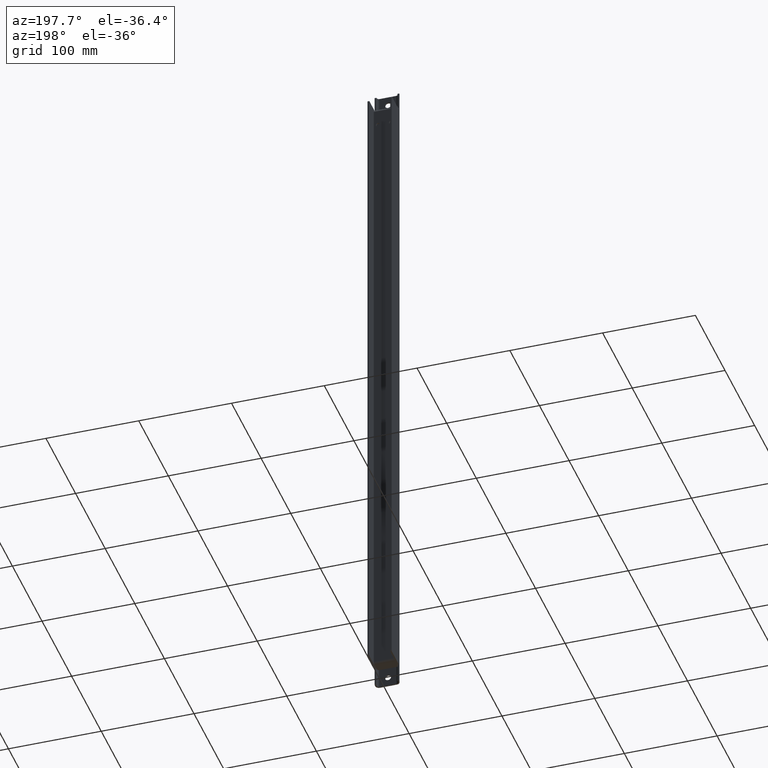
[diagram: clean part render]
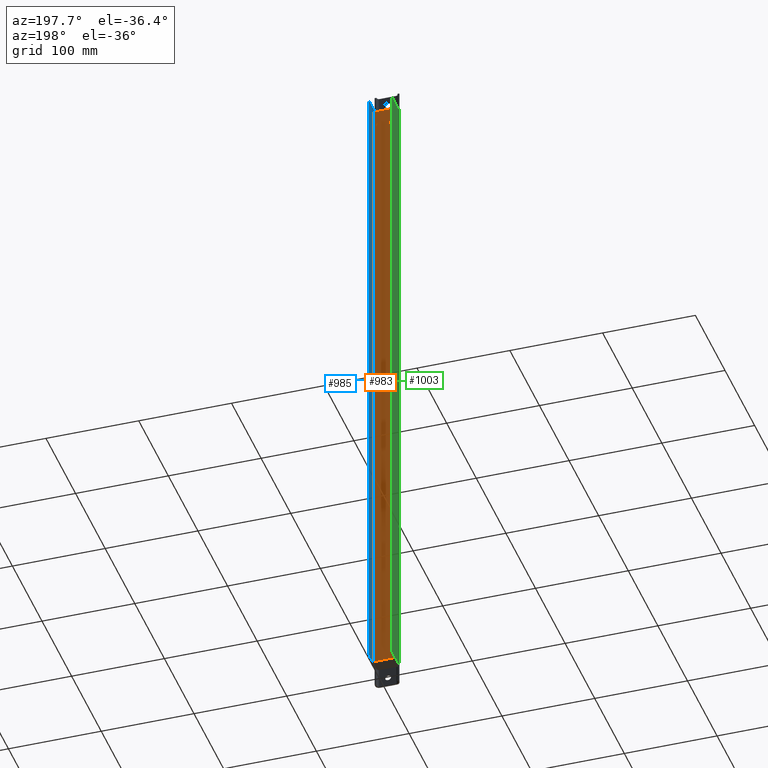
[diagram: same view with three faces highlighted in distinct colors, each labeled with its STEP entity id]
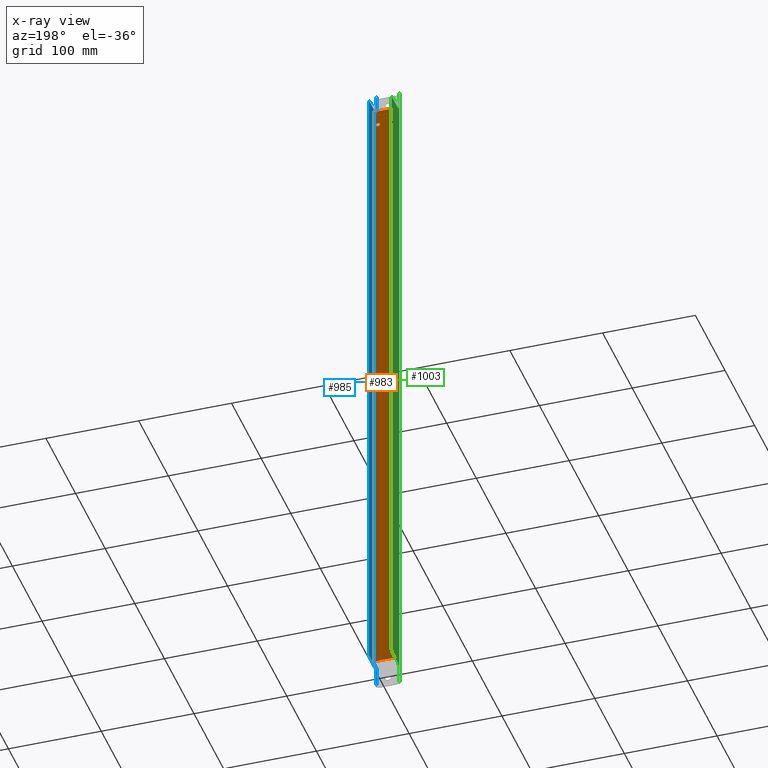
[diagram: x-ray of the same camera — body ghosted, the three highlighted faces saturated]
A machine part, auxiliary view with three faces highlighted in distinct colors.
The next image is the same camera in x-ray (body ghosted, the three faces saturated) — at least one of them is partly hidden behind the body in this view.
Their STEP definitions:

[orange] entity #983 — the highlighted planar face has unit normal (0, 1, -0).
#46=LINE('',#1574,#134);
#47=LINE('',#1577,#135);
#48=LINE('',#1579,#136);
#49=LINE('',#1581,#137);
#134=VECTOR('',#1246,1000.);
#135=VECTOR('',#1247,1000.);
#136=VECTOR('',#1248,1000.);
#137=VECTOR('',#1249,1000.);
#204=PLANE('',#1073);
#275=ORIENTED_EDGE('',*,*,#514,.F.);
#276=ORIENTED_EDGE('',*,*,#516,.F.);
#277=ORIENTED_EDGE('',*,*,#559,.T.);
#278=ORIENTED_EDGE('',*,*,#560,.T.);
#279=ORIENTED_EDGE('',*,*,#561,.T.);
#280=ORIENTED_EDGE('',*,*,#562,.T.);
#514=EDGE_CURVE('',#658,#658,#754,.T.);
#516=EDGE_CURVE('',#660,#660,#756,.T.);
#559=EDGE_CURVE('',#701,#702,#46,.T.);
#560=EDGE_CURVE('',#702,#703,#47,.T.);
#561=EDGE_CURVE('',#703,#704,#48,.T.);
#562=EDGE_CURVE('',#704,#701,#49,.T.);
#658=VERTEX_POINT('',#1477);
#660=VERTEX_POINT('',#1484);
#701=VERTEX_POINT('',#1575);
#702=VERTEX_POINT('',#1576);
#703=VERTEX_POINT('',#1578);
#704=VERTEX_POINT('',#1580);
#754=CIRCLE('',#1045,2.);
#756=CIRCLE('',#1050,2.);
#826=EDGE_LOOP('',(#275));
#827=EDGE_LOOP('',(#276));
#828=EDGE_LOOP('',(#277,#278,#279,#280));
#894=FACE_BOUND('',#826,.T.);
#895=FACE_BOUND('',#827,.T.);
#896=FACE_BOUND('',#828,.T.);
#983=ADVANCED_FACE('',(#894,#895,#896),#204,.T.);
#1045=AXIS2_PLACEMENT_3D('',#1476,#1162,#1163);
#1050=AXIS2_PLACEMENT_3D('',#1483,#1172,#1173);
#1073=AXIS2_PLACEMENT_3D('',#1573,#1244,#1245);
#1162=DIRECTION('',(4.06163832661068E-16,1.,-3.32698173895069E-15));
#1163=DIRECTION('',(9.21833731195405E-17,-3.32698173895069E-15,-1.));
#1172=DIRECTION('',(4.06163832661068E-16,1.,-3.32698173895069E-15));
#1173=DIRECTION('',(9.21833731195405E-17,-3.32698173895069E-15,-1.));
#1244=DIRECTION('',(4.06163832661068E-16,1.,-3.32494788514936E-15));
#1245=DIRECTION('',(-1.,4.06163832661068E-16,6.76398658185478E-32));
#1246=DIRECTION('',(-1.21257418434899E-16,-3.32494788514936E-15,-1.));
#1247=DIRECTION('',(-1.,4.06163832661068E-16,6.76398658185534E-32));
#1248=DIRECTION('',(1.21257418434899E-16,3.32494788514936E-15,1.));
#1249=DIRECTION('',(1.,-4.06163832661068E-16,-6.76398658185534E-32));
#1476=CARTESIAN_POINT('',(7.,-16.4999999999986,333.5));
#1477=CARTESIAN_POINT('',(7.,-16.4999999999986,331.5));
#1483=CARTESIAN_POINT('',(-7.,-16.4999999999986,333.5));
#1484=CARTESIAN_POINT('',(-7.,-16.4999999999986,331.5));
#1573=CARTESIAN_POINT('',(4.66701312594012E-15,-16.4999999999989,-3.78058567638503E-14));
#1574=CARTESIAN_POINT('',(11.5,-16.4999999999977,350.5));
#1575=CARTESIAN_POINT('',(11.5,-16.4999999999986,350.5));
#1576=CARTESIAN_POINT('',(11.5,-16.499999999999,-350.5));
#1577=CARTESIAN_POINT('',(-10.,-16.499999999999,-350.5));
#1578=CARTESIAN_POINT('',(-11.4999999999999,-16.499999999999,-350.5));
#1579=CARTESIAN_POINT('',(-11.4999999999999,-16.4999999999978,350.5));
#1580=CARTESIAN_POINT('',(-11.4999999999999,-16.4999999999978,350.5));
#1581=CARTESIAN_POINT('',(9.99999999999997,-16.4999999999986,350.5));

[blue] entity #985 — the highlighted planar face has unit normal (1, -0, 0).
#40=LINE('',#1554,#128);
#45=LINE('',#1569,#133);
#46=LINE('',#1574,#134);
#57=LINE('',#1613,#145);
#58=LINE('',#1617,#146);
#59=LINE('',#1621,#147);
#60=LINE('',#1625,#148);
#61=LINE('',#1629,#149);
#62=LINE('',#1633,#150);
#63=LINE('',#1637,#151);
#128=VECTOR('',#1228,1000.);
#133=VECTOR('',#1239,1000.);
#134=VECTOR('',#1246,1000.);
#145=VECTOR('',#1281,1000.);
#146=VECTOR('',#1284,1000.);
#147=VECTOR('',#1287,1000.);
#148=VECTOR('',#1290,1000.);
#149=VECTOR('',#1293,1000.);
#150=VECTOR('',#1296,1000.);
#151=VECTOR('',#1299,1000.);
#206=PLANE('',#1083);
#299=ORIENTED_EDGE('',*,*,#556,.F.);
#300=ORIENTED_EDGE('',*,*,#578,.T.);
#301=ORIENTED_EDGE('',*,*,#559,.F.);
#302=ORIENTED_EDGE('',*,*,#579,.T.);
#303=ORIENTED_EDGE('',*,*,#549,.F.);
#304=ORIENTED_EDGE('',*,*,#580,.F.);
#305=ORIENTED_EDGE('',*,*,#581,.T.);
#306=ORIENTED_EDGE('',*,*,#582,.T.);
#307=ORIENTED_EDGE('',*,*,#583,.T.);
#308=ORIENTED_EDGE('',*,*,#584,.T.);
#309=ORIENTED_EDGE('',*,*,#585,.T.);
#310=ORIENTED_EDGE('',*,*,#586,.T.);
#311=ORIENTED_EDGE('',*,*,#587,.T.);
#312=ORIENTED_EDGE('',*,*,#588,.T.);
#313=ORIENTED_EDGE('',*,*,#589,.T.);
#314=ORIENTED_EDGE('',*,*,#590,.T.);
#315=ORIENTED_EDGE('',*,*,#591,.T.);
#316=ORIENTED_EDGE('',*,*,#592,.F.);
#549=EDGE_CURVE('',#693,#694,#40,.T.);
#556=EDGE_CURVE('',#699,#700,#45,.T.);
#559=EDGE_CURVE('',#701,#702,#46,.T.);
#578=EDGE_CURVE('',#699,#702,#781,.T.);
#579=EDGE_CURVE('',#701,#694,#782,.T.);
#580=EDGE_CURVE('',#717,#693,#57,.T.);
#581=EDGE_CURVE('',#717,#718,#783,.T.);
#582=EDGE_CURVE('',#718,#719,#58,.T.);
#583=EDGE_CURVE('',#719,#720,#784,.T.);
#584=EDGE_CURVE('',#720,#721,#59,.T.);
#585=EDGE_CURVE('',#721,#722,#785,.T.);
#586=EDGE_CURVE('',#722,#723,#60,.T.);
#587=EDGE_CURVE('',#723,#724,#786,.T.);
#588=EDGE_CURVE('',#724,#725,#61,.T.);
#589=EDGE_CURVE('',#725,#726,#787,.T.);
#590=EDGE_CURVE('',#726,#727,#62,.T.);
#591=EDGE_CURVE('',#727,#728,#788,.T.);
#592=EDGE_CURVE('',#700,#728,#63,.T.);
#693=VERTEX_POINT('',#1555);
#694=VERTEX_POINT('',#1556);
#699=VERTEX_POINT('',#1568);
#700=VERTEX_POINT('',#1570);
#701=VERTEX_POINT('',#1575);
#702=VERTEX_POINT('',#1576);
#717=VERTEX_POINT('',#1614);
#718=VERTEX_POINT('',#1616);
#719=VERTEX_POINT('',#1618);
#720=VERTEX_POINT('',#1620);
#721=VERTEX_POINT('',#1622);
#722=VERTEX_POINT('',#1624);
#723=VERTEX_POINT('',#1626);
#724=VERTEX_POINT('',#1628);
#725=VERTEX_POINT('',#1630);
#726=VERTEX_POINT('',#1632);
#727=VERTEX_POINT('',#1634);
#728=VERTEX_POINT('',#1636);
#781=CIRCLE('',#1084,3.);
#782=CIRCLE('',#1085,3.);
#783=CIRCLE('',#1086,2.);
#784=CIRCLE('',#1087,2.);
#785=CIRCLE('',#1088,2.);
#786=CIRCLE('',#1089,2.);
#787=CIRCLE('',#1090,2.);
#788=CIRCLE('',#1091,2.);
#830=EDGE_LOOP('',(#299,#300,#301,#302,#303,#304,#305,#306,#307,#308,#309,
#310,#311,#312,#313,#314,#315,#316));
#898=FACE_BOUND('',#830,.T.);
#985=ADVANCED_FACE('',(#898),#206,.F.);
#1083=AXIS2_PLACEMENT_3D('',#1610,#1275,#1276);
#1084=AXIS2_PLACEMENT_3D('',#1611,#1277,#1278);
#1085=AXIS2_PLACEMENT_3D('',#1612,#1279,#1280);
#1086=AXIS2_PLACEMENT_3D('',#1615,#1282,#1283);
#1087=AXIS2_PLACEMENT_3D('',#1619,#1285,#1286);
#1088=AXIS2_PLACEMENT_3D('',#1623,#1288,#1289);
#1089=AXIS2_PLACEMENT_3D('',#1627,#1291,#1292);
#1090=AXIS2_PLACEMENT_3D('',#1631,#1294,#1295);
#1091=AXIS2_PLACEMENT_3D('',#1635,#1297,#1298);
#1228=DIRECTION('',(4.06163832661068E-16,1.,-8.6117241928882E-15));
#1239=DIRECTION('',(-5.71375592277907E-16,-1.,-1.96182842258948E-15));
#1246=DIRECTION('',(-1.21257418434899E-16,-3.32494788514936E-15,-1.));
#1275=DIRECTION('',(1.,-4.06163832661068E-16,8.93686180177302E-17));
#1276=DIRECTION('',(8.93686180177302E-17,1.66533453693773E-16,-1.));
#1277=DIRECTION('',(1.,-4.06163832661068E-16,8.93686180177302E-17));
#1278=DIRECTION('',(4.06163832661068E-16,1.,0.));
#1279=DIRECTION('',(1.,-4.06163832661068E-16,8.93686180177302E-17));
#1280=DIRECTION('',(4.06163832661068E-16,1.,0.));
#1281=DIRECTION('',(8.93686180177302E-17,1.31838984174237E-16,-1.));
#1282=DIRECTION('',(-1.,4.06163832661068E-16,-8.93686180177302E-17));
#1283=DIRECTION('',(8.93686180177302E-17,1.66533453693773E-16,-1.));
#1284=DIRECTION('',(8.93686180177302E-17,4.2624633981144E-17,-1.));
#1285=DIRECTION('',(1.,-4.06163832661068E-16,8.93686180177302E-17));
#1286=DIRECTION('',(8.93686180177302E-17,1.66533453693773E-16,-1.));
#1287=DIRECTION('',(4.06163832661068E-16,1.,1.66533453693773E-16));
#1288=DIRECTION('',(-1.,4.06163832661068E-16,-8.93686180177302E-17));
#1289=DIRECTION('',(8.93686180177302E-17,1.66533453693773E-16,-1.));
#1290=DIRECTION('',(8.93686180177302E-17,1.66533453693773E-16,-1.));
#1291=DIRECTION('',(-1.,4.06163832661068E-16,-8.93686180177302E-17));
#1292=DIRECTION('',(8.93686180177302E-17,1.66533453693773E-16,-1.));
#1293=DIRECTION('',(-4.06163832661068E-16,-1.,-1.66533453693773E-16));
#1294=DIRECTION('',(1.,-4.06163832661068E-16,8.93686180177302E-17));
#1295=DIRECTION('',(8.93686180177302E-17,1.66533453693773E-16,-1.));
#1296=DIRECTION('',(8.93686180177302E-17,1.66533453693773E-16,-1.));
#1297=DIRECTION('',(-1.,4.06163832661068E-16,-8.93686180177302E-17));
#1298=DIRECTION('',(8.93686180177551E-17,6.15323764163733E-14,-1.));
#1299=DIRECTION('',(8.93686180177302E-17,1.31838984174237E-16,-1.));
#1554=CARTESIAN_POINT('',(11.5,-16.4999999999967,353.5));
#1555=CARTESIAN_POINT('',(11.5,-26.0000000000002,353.5));
#1556=CARTESIAN_POINT('',(11.5,-19.4999999999985,353.5));
#1568=CARTESIAN_POINT('',(11.5,-19.499999999999,-353.5));
#1569=CARTESIAN_POINT('',(11.5,-16.4999999999959,-353.5));
#1570=CARTESIAN_POINT('',(11.5,-25.9999999999999,-353.5));
#1574=CARTESIAN_POINT('',(11.5,-16.4999999999977,350.5));
#1575=CARTESIAN_POINT('',(11.5,-16.4999999999986,350.5));
#1576=CARTESIAN_POINT('',(11.5,-16.499999999999,-350.5));
#1610=CARTESIAN_POINT('',(11.5,-28.5000000000002,-2.75106686463224E-15));
#1611=CARTESIAN_POINT('',(11.5,-19.499999999999,-350.5));
#1612=CARTESIAN_POINT('',(11.5,-19.4999999999986,350.5));
#1613=CARTESIAN_POINT('',(11.5,-26.0000000000003,625.));
#1614=CARTESIAN_POINT('',(11.5,-26.0000000000002,375.));
#1615=CARTESIAN_POINT('',(11.5,-26.0000000000002,373.));
#1616=CARTESIAN_POINT('',(11.5,-24.0000000000002,373.));
#1617=CARTESIAN_POINT('',(11.5,-24.0000000000002,125.));
#1618=CARTESIAN_POINT('',(11.5,-24.0000000000002,356.));
#1619=CARTESIAN_POINT('',(11.5,-22.0000000000002,356.));
#1620=CARTESIAN_POINT('',(11.5,-22.0000000000002,354.));
#1621=CARTESIAN_POINT('',(11.5,-28.5000000000002,354.));
#1622=CARTESIAN_POINT('',(11.5,-2.00000000000032,354.));
#1623=CARTESIAN_POINT('',(11.4999999999998,-2.00000000000032,352.));
#1624=CARTESIAN_POINT('',(11.4999999999998,-3.22658566531686E-13,352.));
#1625=CARTESIAN_POINT('',(11.4999999999998,-3.05311331771918E-13,1.07920257032452E-15));
#1626=CARTESIAN_POINT('',(11.4999999999998,-2.4669155607171E-13,-352.));
#1627=CARTESIAN_POINT('',(11.4999999999999,-2.00000000000002,-352.));
#1628=CARTESIAN_POINT('',(11.4999999999999,-2.00000000000002,-354.));
#1629=CARTESIAN_POINT('',(11.5000000000001,-28.4999999999999,-354.));
#1630=CARTESIAN_POINT('',(11.5000000000001,-21.9999999999999,-354.));
#1631=CARTESIAN_POINT('',(11.5000000000001,-21.9999999999999,-356.));
#1632=CARTESIAN_POINT('',(11.5,-24.0000000000001,-356.));
#1633=CARTESIAN_POINT('',(11.5,-24.0000000000002,125.));
#1634=CARTESIAN_POINT('',(11.5000000000001,-23.9999999999999,-373.));
#1635=CARTESIAN_POINT('',(11.5000000000001,-25.9999999999999,-373.));
#1636=CARTESIAN_POINT('',(11.5000000000001,-26.,-375.));
#1637=CARTESIAN_POINT('',(11.5,-26.0000000000003,375.));

[green] entity #1003 — the highlighted planar face has unit normal (-1, -0, 0).
#72=LINE('',#1669,#160);
#77=LINE('',#1681,#165);
#78=LINE('',#1683,#166);
#79=LINE('',#1687,#167);
#80=LINE('',#1691,#168);
#81=LINE('',#1695,#169);
#160=VECTOR('',#1350,1000.);
#165=VECTOR('',#1365,1000.);
#166=VECTOR('',#1366,1000.);
#167=VECTOR('',#1369,1000.);
#168=VECTOR('',#1372,1000.);
#169=VECTOR('',#1375,1000.);
#211=PLANE('',#1117);
#381=ORIENTED_EDGE('',*,*,#614,.F.);
#382=ORIENTED_EDGE('',*,*,#612,.T.);
#383=ORIENTED_EDGE('',*,*,#607,.T.);
#384=ORIENTED_EDGE('',*,*,#609,.T.);
#385=ORIENTED_EDGE('',*,*,#615,.F.);
#386=ORIENTED_EDGE('',*,*,#616,.T.);
#387=ORIENTED_EDGE('',*,*,#617,.F.);
#388=ORIENTED_EDGE('',*,*,#618,.T.);
#389=ORIENTED_EDGE('',*,*,#619,.F.);
#390=ORIENTED_EDGE('',*,*,#620,.T.);
#391=ORIENTED_EDGE('',*,*,#621,.F.);
#392=ORIENTED_EDGE('',*,*,#622,.T.);
#607=EDGE_CURVE('',#729,#730,#72,.F.);
#609=EDGE_CURVE('',#730,#731,#795,.T.);
#612=EDGE_CURVE('',#732,#729,#796,.T.);
#614=EDGE_CURVE('',#732,#733,#77,.T.);
#615=EDGE_CURVE('',#734,#731,#78,.T.);
#616=EDGE_CURVE('',#734,#735,#797,.T.);
#617=EDGE_CURVE('',#736,#735,#79,.T.);
#618=EDGE_CURVE('',#736,#737,#798,.T.);
#619=EDGE_CURVE('',#738,#737,#80,.T.);
#620=EDGE_CURVE('',#738,#739,#799,.T.);
#621=EDGE_CURVE('',#740,#739,#81,.T.);
#622=EDGE_CURVE('',#740,#733,#800,.T.);
#729=VERTEX_POINT('',#1666);
#730=VERTEX_POINT('',#1668);
#731=VERTEX_POINT('',#1672);
#732=VERTEX_POINT('',#1678);
#733=VERTEX_POINT('',#1682);
#734=VERTEX_POINT('',#1684);
#735=VERTEX_POINT('',#1686);
#736=VERTEX_POINT('',#1688);
#737=VERTEX_POINT('',#1690);
#738=VERTEX_POINT('',#1692);
#739=VERTEX_POINT('',#1694);
#740=VERTEX_POINT('',#1696);
#795=CIRCLE('',#1114,2.);
#796=CIRCLE('',#1116,2.);
#797=CIRCLE('',#1118,2.);
#798=CIRCLE('',#1119,2.);
#799=CIRCLE('',#1120,2.);
#800=CIRCLE('',#1121,2.);
#850=EDGE_LOOP('',(#381,#382,#383,#384,#385,#386,#387,#388,#389,#390,#391,
#392));
#918=FACE_BOUND('',#850,.T.);
#1003=ADVANCED_FACE('',(#918),#211,.T.);
#1114=AXIS2_PLACEMENT_3D('',#1673,#1354,#1355);
#1116=AXIS2_PLACEMENT_3D('',#1677,#1360,#1361);
#1117=AXIS2_PLACEMENT_3D('',#1680,#1363,#1364);
#1118=AXIS2_PLACEMENT_3D('',#1685,#1367,#1368);
#1119=AXIS2_PLACEMENT_3D('',#1689,#1370,#1371);
#1120=AXIS2_PLACEMENT_3D('',#1693,#1373,#1374);
#1121=AXIS2_PLACEMENT_3D('',#1697,#1376,#1377);
#1350=DIRECTION('',(-3.32185076179637E-17,1.66533453693773E-16,-1.));
#1354=DIRECTION('',(-1.,-3.10099449920508E-15,3.32185076179632E-17));
#1355=DIRECTION('',(3.06328311929254E-15,-1.,-1.66533453693773E-16));
#1360=DIRECTION('',(-1.,-3.10099449920508E-15,3.32185076179632E-17));
#1361=DIRECTION('',(3.06328311929254E-15,-1.,-1.66533453693773E-16));
#1363=DIRECTION('',(-1.,-3.10099449920508E-15,3.32185076179632E-17));
#1364=DIRECTION('',(3.10099449920508E-15,-1.,-1.66533453693773E-16));
#1365=DIRECTION('',(-8.93686180177302E-17,-1.66533453693773E-16,1.));
#1366=DIRECTION('',(-8.93686180177302E-17,-4.2624633981144E-17,1.));
#1367=DIRECTION('',(1.,3.10099449920508E-15,-3.32185076179632E-17));
#1368=DIRECTION('',(3.06328311929254E-15,-1.,-1.66533453693773E-16));
#1369=DIRECTION('',(-4.06163832661068E-16,-1.,-1.66533453693773E-16));
#1370=DIRECTION('',(-1.,-3.10099449920508E-15,3.32185076179632E-17));
#1371=DIRECTION('',(3.06328311929254E-15,-1.,-1.66533453693773E-16));
#1372=DIRECTION('',(3.32185076179638E-17,-1.66533453693773E-16,1.));
#1373=DIRECTION('',(-1.,-3.10099449920508E-15,3.32185076179632E-17));
#1374=DIRECTION('',(3.06328311929254E-15,-1.,-1.66533453693773E-16));
#1375=DIRECTION('',(4.06163832661068E-16,1.,1.66533453693773E-16));
#1376=DIRECTION('',(1.,3.10099449920508E-15,-3.32185076179632E-17));
#1377=DIRECTION('',(3.06328311929254E-15,-1.,-1.66533453693773E-16));
#1666=CARTESIAN_POINT('',(-12.9999999999999,-26.0000000000001,-375.));
#1668=CARTESIAN_POINT('',(-12.9999999999999,-26.0000000000003,375.));
#1669=CARTESIAN_POINT('',(-12.9999999999999,-26.0000000000003,-2.62127271868567E-15));
#1672=CARTESIAN_POINT('',(-12.9999999999999,-24.0000000000002,373.));
#1673=CARTESIAN_POINT('',(-12.9999999999999,-26.0000000000002,373.));
#1677=CARTESIAN_POINT('',(-12.9999999999999,-25.9999999999999,-373.));
#1678=CARTESIAN_POINT('',(-12.9999999999998,-23.9999999999999,-373.));
#1680=CARTESIAN_POINT('',(-12.9999999999999,-28.5000000000003,-3.48838361151601E-15));
#1681=CARTESIAN_POINT('',(-12.9999999999999,-24.0000000000002,-250.));
#1682=CARTESIAN_POINT('',(-12.9999999999999,-24.0000000000002,-356.));
#1683=CARTESIAN_POINT('',(-13.,-24.0000000000003,500.));
#1684=CARTESIAN_POINT('',(-12.9999999999999,-24.0000000000002,356.));
#1685=CARTESIAN_POINT('',(-12.9999999999999,-22.0000000000002,356.));
#1686=CARTESIAN_POINT('',(-12.9999999999999,-22.0000000000002,354.));
#1687=CARTESIAN_POINT('',(-12.9999999999999,-5.50000000000024,354.));
#1688=CARTESIAN_POINT('',(-13.0000000000001,-2.00000000000035,354.));
#1689=CARTESIAN_POINT('',(-13.0000000000001,-2.00000000000035,352.));
#1690=CARTESIAN_POINT('',(-13.0000000000002,-3.91686683087755E-13,352.));
#1691=CARTESIAN_POINT('',(-13.0000000000002,-3.95516952522712E-13,375.));
#1692=CARTESIAN_POINT('',(-13.0000000000001,-5.03069808033274E-14,-352.));
#1693=CARTESIAN_POINT('',(-13.0000000000001,-2.00000000000005,-352.));
#1694=CARTESIAN_POINT('',(-12.9999999999998,-2.00000000000002,-354.));
#1695=CARTESIAN_POINT('',(-12.9999999999998,-5.49999999999994,-354.));
#1696=CARTESIAN_POINT('',(-12.9999999999998,-21.9999999999999,-354.));
#1697=CARTESIAN_POINT('',(-12.9999999999999,-21.9999999999999,-356.));